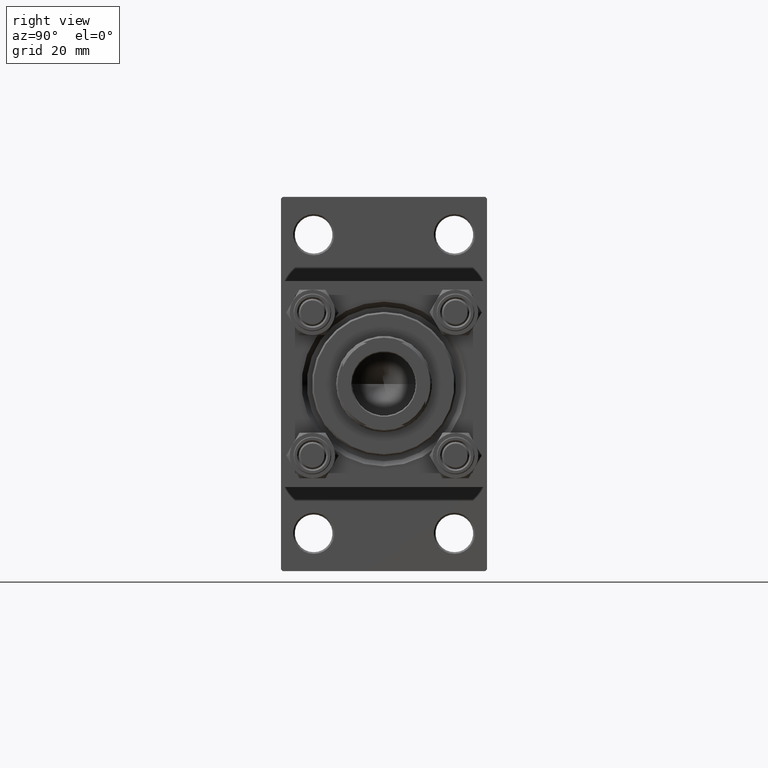
[diagram: clean part render]
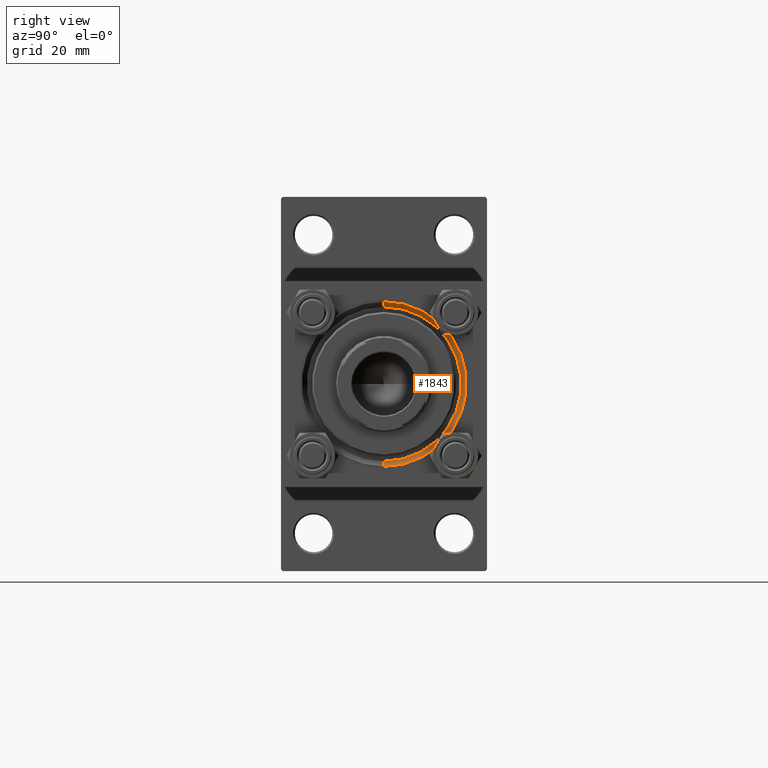
[diagram: same view with one face highlighted and labeled with its STEP entity id]
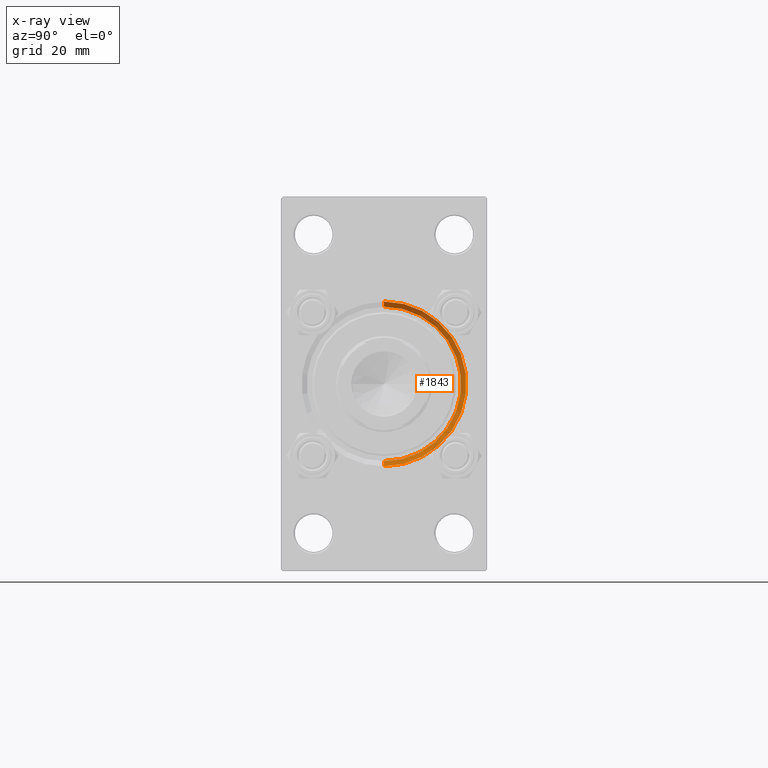
[diagram: x-ray of the same camera — body ghosted, the highlighted face saturated]
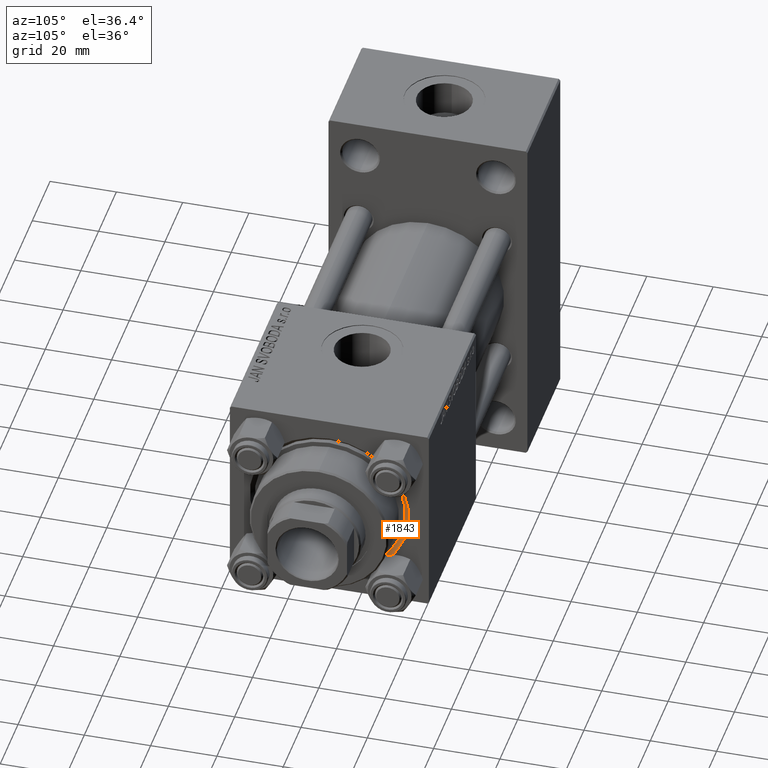
[diagram: same view with one face highlighted and labeled with its STEP entity id]
A machine part, right view. The second image highlights one B-rep face of the part: STEP entity #1843.
The next image is the same camera in x-ray: the body ghosted, the highlighted face saturated — about 0% of this face is hidden behind the body in this view.
A second angle (auxiliary view) of the same face is appended — the face is thin or edge-on in the first view.
In plain terms, the highlighted conical surface has half-angle 45 deg.
Its self-contained STEP definition (entity closure, byte-faithful):
#186 = DIRECTION ( 'NONE',  ( 0.000000000000000000, 0.000000000000000000, -1.000000000000000000 ) ) ;
#714 = ORIENTED_EDGE ( 'NONE', *, *, #37951, .F. ) ;
#1843 = ADVANCED_FACE ( 'NONE', ( #12046 ), #7526, .F. ) ;
#2549 = LINE ( 'NONE', #10874, #10161 ) ;
#3236 = VERTEX_POINT ( 'NONE', #29958 ) ;
#3267 = CARTESIAN_POINT ( 'NONE',  ( 146.5000000000000284, 2.755455298081545172E-15, 22.50000000000000355 ) ) ;
#7526 = CONICAL_SURFACE ( 'NONE', #9928, 22.50000000000000355, 0.7853981633974460586 ) ;
#8267 = DIRECTION ( 'NONE',  ( 1.000000000000000000, 0.000000000000000000, 0.000000000000000000 ) ) ;
#8349 = VERTEX_POINT ( 'NONE', #44565 ) ;
#9928 = AXIS2_PLACEMENT_3D ( 'NONE', #19652, #8267, #186 ) ;
#10161 = VECTOR ( 'NONE', #29846, 1000.000000000000000 ) ;
#10874 = CARTESIAN_POINT ( 'NONE',  ( 146.5000000000000284, 2.755455298081545172E-15, 22.50000000000000355 ) ) ;
#11263 = EDGE_CURVE ( 'NONE', #15215, #8349, #2549, .T. ) ;
#12046 = FACE_OUTER_BOUND ( 'NONE', #16860, .T. ) ;
#12519 = ORIENTED_EDGE ( 'NONE', *, *, #11263, .F. ) ;
#14265 = CIRCLE ( 'NONE', #36094, 23.99999999999996803 ) ;
#14685 = EDGE_CURVE ( 'NONE', #3236, #46655, #42346, .T. ) ;
#15215 = VERTEX_POINT ( 'NONE', #3267 ) ;
#15939 = VECTOR ( 'NONE', #30752, 1000.000000000000000 ) ;
#16860 = EDGE_LOOP ( 'NONE', ( #12519, #714, #23061, #23669 ) ) ;
#17330 = CARTESIAN_POINT ( 'NONE',  ( 148.0000000000000000, 0.000000000000000000, 0.000000000000000000 ) ) ;
#18093 = DIRECTION ( 'NONE',  ( 0.000000000000000000, 0.000000000000000000, 1.000000000000000000 ) ) ;
#19652 = CARTESIAN_POINT ( 'NONE',  ( 146.5000000000000284, 0.000000000000000000, 0.000000000000000000 ) ) ;
#21218 = DIRECTION ( 'NONE',  ( 0.000000000000000000, 0.000000000000000000, 1.000000000000000000 ) ) ;
#22251 = CIRCLE ( 'NONE', #40011, 22.50000000000000355 ) ;
#23061 = ORIENTED_EDGE ( 'NONE', *, *, #14685, .T. ) ;
#23669 = ORIENTED_EDGE ( 'NONE', *, *, #40565, .F. ) ;
#25380 = CARTESIAN_POINT ( 'NONE',  ( 148.0000000000000000, 0.000000000000000000, -23.99999999999996803 ) ) ;
#25673 = DIRECTION ( 'NONE',  ( -1.000000000000000000, 0.000000000000000000, -0.000000000000000000 ) ) ;
#29846 = DIRECTION ( 'NONE',  ( 0.7071067811865491270, 8.659560562354913137E-17, 0.7071067811865459074 ) ) ;
#29958 = CARTESIAN_POINT ( 'NONE',  ( 146.5000000000000284, 0.000000000000000000, -22.50000000000000355 ) ) ;
#30752 = DIRECTION ( 'NONE',  ( 0.7071067811865491270, 0.000000000000000000, -0.7071067811865459074 ) ) ;
#32593 = DIRECTION ( 'NONE',  ( 1.000000000000000000, 0.000000000000000000, 0.000000000000000000 ) ) ;
#34771 = CARTESIAN_POINT ( 'NONE',  ( 146.5000000000000284, 0.000000000000000000, -22.50000000000000355 ) ) ;
#36094 = AXIS2_PLACEMENT_3D ( 'NONE', #17330, #25673, #18093 ) ;
#37951 = EDGE_CURVE ( 'NONE', #3236, #15215, #22251, .T. ) ;
#40011 = AXIS2_PLACEMENT_3D ( 'NONE', #44219, #32593, #21218 ) ;
#40565 = EDGE_CURVE ( 'NONE', #8349, #46655, #14265, .T. ) ;
#42346 = LINE ( 'NONE', #34771, #15939 ) ;
#44219 = CARTESIAN_POINT ( 'NONE',  ( 146.5000000000000284, 0.000000000000000000, 0.000000000000000000 ) ) ;
#44565 = CARTESIAN_POINT ( 'NONE',  ( 148.0000000000000000, 2.939152317953644345E-15, 23.99999999999996803 ) ) ;
#46655 = VERTEX_POINT ( 'NONE', #25380 ) ;